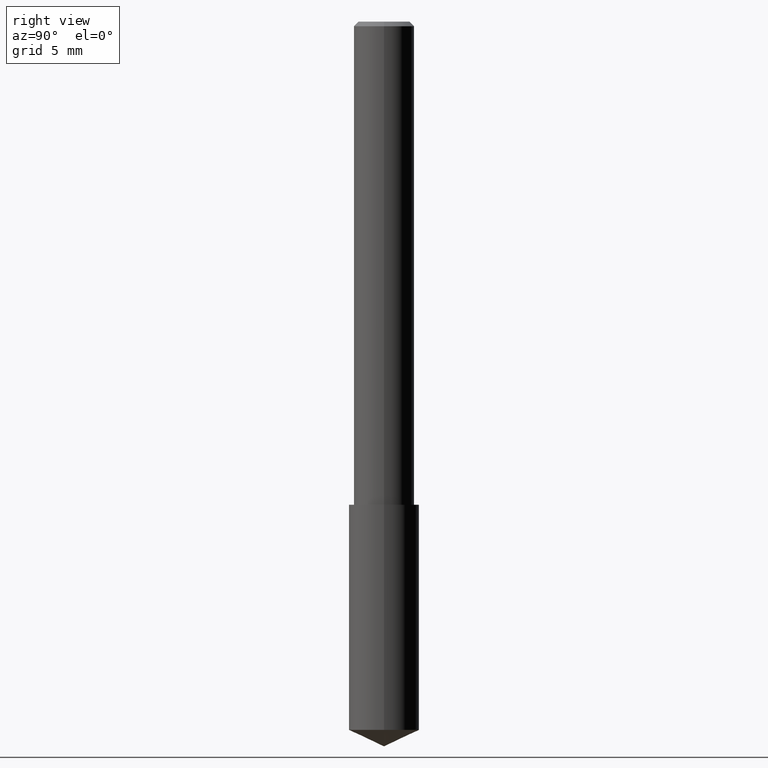
[diagram: clean part render]
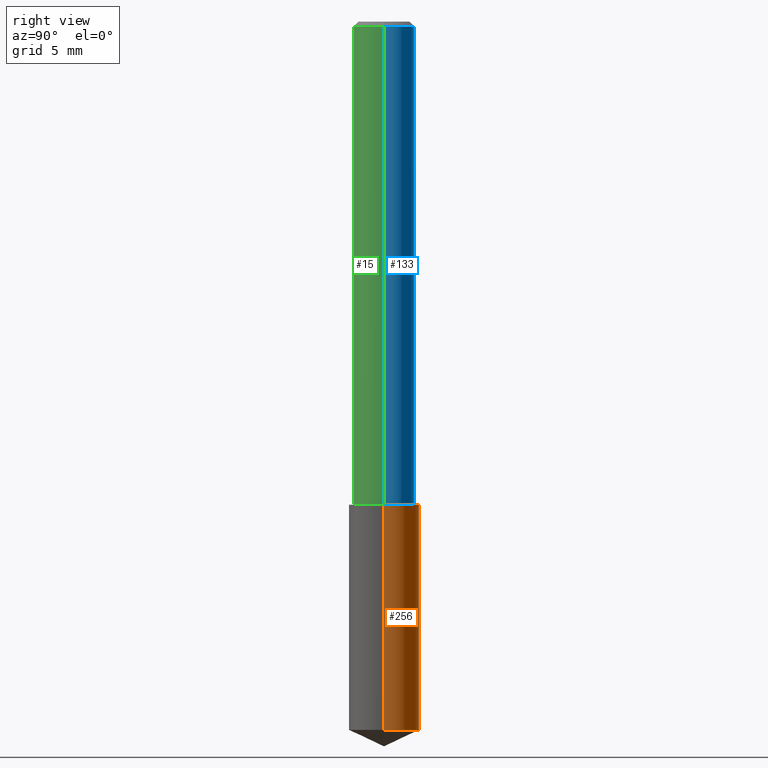
[diagram: same view with three faces highlighted in distinct colors, each labeled with its STEP entity id]
A machine part, right view with three faces highlighted in distinct colors.
Their STEP definitions:

[orange] entity #256 — the highlighted cylindrical surface (edge-blend (fillet) strip) has radius 1.8504 mm, axis along (-0, 0, 1).
#10 = ORIENTED_EDGE ( 'NONE', *, *, #85, .T. ) ;
#11 = EDGE_CURVE ( 'NONE', #93, #97, #141, .T. ) ;
#16 = ORIENTED_EDGE ( 'NONE', *, *, #74, .F. ) ;
#21 = VERTEX_POINT ( 'NONE', #154 ) ;
#25 = AXIS2_PLACEMENT_3D ( 'NONE', #312, #37, #38 ) ;
#27 = DIRECTION ( 'NONE',  ( 1.000000000000000000, -6.982962677686265922E-15, 0.000000000000000000 ) ) ;
#37 = DIRECTION ( 'NONE',  ( -2.445468806185136597E-29, 3.491481338843145583E-15, 1.000000000000000000 ) ) ;
#38 = DIRECTION ( 'NONE',  ( 1.000000000000000000, -6.982962677686265133E-15, 0.000000000000000000 ) ) ;
#46 = VECTOR ( 'NONE', #50, 39.37007874015748143 ) ;
#50 = DIRECTION ( 'NONE',  ( -2.445468806185136877E-29, 3.491481338843145188E-15, 1.000000000000000000 ) ) ;
#74 = EDGE_CURVE ( 'NONE', #97, #21, #299, .T. ) ;
#85 = EDGE_CURVE ( 'NONE', #93, #125, #169, .T. ) ;
#91 = AXIS2_PLACEMENT_3D ( 'NONE', #160, #132, #27 ) ;
#93 = VERTEX_POINT ( 'NONE', #95 ) ;
#95 = CARTESIAN_POINT ( 'NONE',  ( 0.07285000000000002585, -5.627323427484784326E-15, -1.466029487103408746 ) ) ;
#97 = VERTEX_POINT ( 'NONE', #328 ) ;
#115 = AXIS2_PLACEMENT_3D ( 'NONE', #214, #255, #282 ) ;
#125 = VERTEX_POINT ( 'NONE', #305 ) ;
#132 = DIRECTION ( 'NONE',  ( -2.445468806185136597E-29, 3.491481338843145583E-15, 1.000000000000000000 ) ) ;
#141 = LINE ( 'NONE', #143, #197 ) ;
#143 = CARTESIAN_POINT ( 'NONE',  ( 0.07284999999999999809, -4.000190169912591050E-15, -1.000000000000000222 ) ) ;
#147 = CARTESIAN_POINT ( 'NONE',  ( -0.07284999999999999809, -2.973850955841913597E-15, -1.000000000000000222 ) ) ;
#154 = CARTESIAN_POINT ( 'NONE',  ( -0.07284999999999999809, -3.787417584628009446E-15, -1.000000000000000222 ) ) ;
#160 = CARTESIAN_POINT ( 'NONE',  ( 2.445468806185136877E-29, -3.491481338843145977E-15, -1.000000000000000222 ) ) ;
#162 = CYLINDRICAL_SURFACE ( 'NONE', #115, 0.07284999999999999809 ) ;
#169 = CIRCLE ( 'NONE', #25, 0.07285000000000001197 ) ;
#197 = VECTOR ( 'NONE', #261, 39.37007874015748143 ) ;
#214 = CARTESIAN_POINT ( 'NONE',  ( 2.445468806185137438E-29, -3.491481338843146371E-15, -1.000000000000000222 ) ) ;
#234 = FACE_OUTER_BOUND ( 'NONE', #254, .T. ) ;
#242 = ORIENTED_EDGE ( 'NONE', *, *, #11, .F. ) ;
#251 = LINE ( 'NONE', #147, #46 ) ;
#254 = EDGE_LOOP ( 'NONE', ( #10, #274, #16, #242 ) ) ;
#255 = DIRECTION ( 'NONE',  ( -2.445468806185136597E-29, 3.491481338843145583E-15, 1.000000000000000000 ) ) ;
#256 = ADVANCED_FACE ( 'NONE', ( #234 ), #162, .T. ) ;
#261 = DIRECTION ( 'NONE',  ( -2.445468806185136877E-29, 3.491481338843145188E-15, 1.000000000000000000 ) ) ;
#274 = ORIENTED_EDGE ( 'NONE', *, *, #335, .T. ) ;
#282 = DIRECTION ( 'NONE',  ( 1.000000000000000000, -6.982962677686265922E-15, 0.000000000000000000 ) ) ;
#299 = CIRCLE ( 'NONE', #91, 0.07284999999999999809 ) ;
#305 = CARTESIAN_POINT ( 'NONE',  ( -0.07285000000000002585, -4.600984213414106479E-15, -1.466029487103408746 ) ) ;
#312 = CARTESIAN_POINT ( 'NONE',  ( 3.585129379658981357E-29, -5.118614596415340043E-15, -1.466029487103408746 ) ) ;
#328 = CARTESIAN_POINT ( 'NONE',  ( 0.07284999999999999809, -4.000190169912590261E-15, -1.000000000000000222 ) ) ;
#335 = EDGE_CURVE ( 'NONE', #125, #21, #251, .T. ) ;

[blue] entity #133 — the highlighted cylindrical surface (edge-blend (fillet) strip) has radius 1.5875 mm, axis along (-0, 0, 1).
#7 = VECTOR ( 'NONE', #336, 39.37007874015748143 ) ;
#28 = DIRECTION ( 'NONE',  ( -2.445468806185136597E-29, 3.491481338843145583E-15, 1.000000000000000000 ) ) ;
#29 = CARTESIAN_POINT ( 'NONE',  ( 0.06250000000000000000, -4.691678049070464390E-16, -0.009375000000000063838 ) ) ;
#33 = EDGE_CURVE ( 'NONE', #108, #104, #185, .T. ) ;
#35 = VECTOR ( 'NONE', #128, 39.37007874015748143 ) ;
#41 = EDGE_LOOP ( 'NONE', ( #69, #243, #168, #173 ) ) ;
#44 = CARTESIAN_POINT ( 'NONE',  ( 0.06250000000000006939, -4.364351673553921624E-16, 3.047610484872463374E-30 ) ) ;
#54 = CARTESIAN_POINT ( 'NONE',  ( 0.06250000000000012490, -3.927916506198539224E-15, -1.000000000000000222 ) ) ;
#57 = CARTESIAN_POINT ( 'NONE',  ( 2.445468806185137438E-29, -3.491481338843146371E-15, -1.000000000000000222 ) ) ;
#69 = ORIENTED_EDGE ( 'NONE', *, *, #303, .T. ) ;
#70 = CYLINDRICAL_SURFACE ( 'NONE', #139, 0.06250000000000006939 ) ;
#75 = DIRECTION ( 'NONE',  ( -2.445468806185136597E-29, 3.491481338843145583E-15, 1.000000000000000000 ) ) ;
#80 = CARTESIAN_POINT ( 'NONE',  ( -0.06250000000000006939, 4.440892098500631092E-16, -3.074334431409319267E-30 ) ) ;
#104 = VERTEX_POINT ( 'NONE', #241 ) ;
#108 = VERTEX_POINT ( 'NONE', #119 ) ;
#119 = CARTESIAN_POINT ( 'NONE',  ( -0.06250000000000012490, -1.318017778347335489E-15, -1.000000000000000222 ) ) ;
#128 = DIRECTION ( 'NONE',  ( -2.445468806185136877E-29, 3.491481338843145188E-15, 1.000000000000000000 ) ) ;
#133 = ADVANCED_FACE ( 'NONE', ( #202 ), #70, .T. ) ;
#138 = DIRECTION ( 'NONE',  ( 1.000000000000000000, -6.982962677686264344E-15, 0.000000000000000000 ) ) ;
#139 = AXIS2_PLACEMENT_3D ( 'NONE', #171, #75, #181 ) ;
#151 = CARTESIAN_POINT ( 'NONE',  ( 2.292627005798581499E-31, -3.273263755165471417E-17, -0.009375000000000063838 ) ) ;
#168 = ORIENTED_EDGE ( 'NONE', *, *, #225, .F. ) ;
#171 = CARTESIAN_POINT ( 'NONE',  ( 0.000000000000000000, 0.000000000000000000, 0.000000000000000000 ) ) ;
#173 = ORIENTED_EDGE ( 'NONE', *, *, #316, .F. ) ;
#181 = DIRECTION ( 'NONE',  ( 1.000000000000000000, -6.982962677686266711E-15, 4.876176775795935793E-29 ) ) ;
#185 = LINE ( 'NONE', #80, #7 ) ;
#198 = AXIS2_PLACEMENT_3D ( 'NONE', #151, #28, #315 ) ;
#202 = FACE_OUTER_BOUND ( 'NONE', #41, .T. ) ;
#216 = AXIS2_PLACEMENT_3D ( 'NONE', #57, #258, #138 ) ;
#225 = EDGE_CURVE ( 'NONE', #272, #104, #286, .T. ) ;
#227 = VERTEX_POINT ( 'NONE', #54 ) ;
#241 = CARTESIAN_POINT ( 'NONE',  ( -0.06250000000000000000, -1.318017778347336672E-15, -0.009375000000000063838 ) ) ;
#243 = ORIENTED_EDGE ( 'NONE', *, *, #33, .T. ) ;
#258 = DIRECTION ( 'NONE',  ( -2.445468806185136597E-29, 3.491481338843145583E-15, 1.000000000000000000 ) ) ;
#272 = VERTEX_POINT ( 'NONE', #29 ) ;
#286 = CIRCLE ( 'NONE', #198, 0.06250000000000000000 ) ;
#302 = CIRCLE ( 'NONE', #216, 0.06250000000000012490 ) ;
#303 = EDGE_CURVE ( 'NONE', #227, #108, #302, .T. ) ;
#307 = LINE ( 'NONE', #44, #35 ) ;
#315 = DIRECTION ( 'NONE',  ( 1.000000000000000000, -6.982962677686266711E-15, 0.000000000000000000 ) ) ;
#316 = EDGE_CURVE ( 'NONE', #227, #272, #307, .T. ) ;
#336 = DIRECTION ( 'NONE',  ( -2.445468806185136877E-29, 3.491481338843145188E-15, 1.000000000000000000 ) ) ;

[green] entity #15 — the highlighted cylindrical surface (edge-blend (fillet) strip) has radius 1.5875 mm, axis along (-0, 0, 1).
#7 = VECTOR ( 'NONE', #336, 39.37007874015748143 ) ;
#9 = EDGE_CURVE ( 'NONE', #104, #272, #112, .T. ) ;
#15 = ADVANCED_FACE ( 'NONE', ( #215 ), #86, .T. ) ;
#29 = CARTESIAN_POINT ( 'NONE',  ( 0.06250000000000000000, -4.691678049070464390E-16, -0.009375000000000063838 ) ) ;
#31 = CARTESIAN_POINT ( 'NONE',  ( 2.292627005798581499E-31, -3.273263755165471417E-17, -0.009375000000000063838 ) ) ;
#33 = EDGE_CURVE ( 'NONE', #108, #104, #185, .T. ) ;
#34 = AXIS2_PLACEMENT_3D ( 'NONE', #31, #60, #63 ) ;
#35 = VECTOR ( 'NONE', #128, 39.37007874015748143 ) ;
#36 = ORIENTED_EDGE ( 'NONE', *, *, #316, .T. ) ;
#44 = CARTESIAN_POINT ( 'NONE',  ( 0.06250000000000006939, -4.364351673553921624E-16, 3.047610484872463374E-30 ) ) ;
#45 = AXIS2_PLACEMENT_3D ( 'NONE', #259, #87, #83 ) ;
#54 = CARTESIAN_POINT ( 'NONE',  ( 0.06250000000000012490, -3.927916506198539224E-15, -1.000000000000000222 ) ) ;
#60 = DIRECTION ( 'NONE',  ( -2.445468806185136597E-29, 3.491481338843145583E-15, 1.000000000000000000 ) ) ;
#63 = DIRECTION ( 'NONE',  ( 1.000000000000000000, -6.982962677686266711E-15, 0.000000000000000000 ) ) ;
#67 = EDGE_CURVE ( 'NONE', #108, #227, #268, .T. ) ;
#80 = CARTESIAN_POINT ( 'NONE',  ( -0.06250000000000006939, 4.440892098500631092E-16, -3.074334431409319267E-30 ) ) ;
#83 = DIRECTION ( 'NONE',  ( 1.000000000000000000, -6.982962677686266711E-15, 4.876176775795935793E-29 ) ) ;
#86 = CYLINDRICAL_SURFACE ( 'NONE', #45, 0.06250000000000006939 ) ;
#87 = DIRECTION ( 'NONE',  ( -2.445468806185136597E-29, 3.491481338843145583E-15, 1.000000000000000000 ) ) ;
#101 = ORIENTED_EDGE ( 'NONE', *, *, #9, .F. ) ;
#104 = VERTEX_POINT ( 'NONE', #241 ) ;
#108 = VERTEX_POINT ( 'NONE', #119 ) ;
#112 = CIRCLE ( 'NONE', #34, 0.06250000000000000000 ) ;
#119 = CARTESIAN_POINT ( 'NONE',  ( -0.06250000000000012490, -1.318017778347335489E-15, -1.000000000000000222 ) ) ;
#120 = ORIENTED_EDGE ( 'NONE', *, *, #33, .F. ) ;
#128 = DIRECTION ( 'NONE',  ( -2.445468806185136877E-29, 3.491481338843145188E-15, 1.000000000000000000 ) ) ;
#129 = AXIS2_PLACEMENT_3D ( 'NONE', #164, #183, #285 ) ;
#164 = CARTESIAN_POINT ( 'NONE',  ( 2.445468806185137438E-29, -3.491481338843146371E-15, -1.000000000000000222 ) ) ;
#183 = DIRECTION ( 'NONE',  ( -2.445468806185136597E-29, 3.491481338843145583E-15, 1.000000000000000000 ) ) ;
#185 = LINE ( 'NONE', #80, #7 ) ;
#215 = FACE_OUTER_BOUND ( 'NONE', #284, .T. ) ;
#227 = VERTEX_POINT ( 'NONE', #54 ) ;
#241 = CARTESIAN_POINT ( 'NONE',  ( -0.06250000000000000000, -1.318017778347336672E-15, -0.009375000000000063838 ) ) ;
#259 = CARTESIAN_POINT ( 'NONE',  ( 0.000000000000000000, 0.000000000000000000, 0.000000000000000000 ) ) ;
#268 = CIRCLE ( 'NONE', #129, 0.06250000000000012490 ) ;
#272 = VERTEX_POINT ( 'NONE', #29 ) ;
#284 = EDGE_LOOP ( 'NONE', ( #120, #324, #36, #101 ) ) ;
#285 = DIRECTION ( 'NONE',  ( 1.000000000000000000, -6.982962677686264344E-15, 0.000000000000000000 ) ) ;
#307 = LINE ( 'NONE', #44, #35 ) ;
#316 = EDGE_CURVE ( 'NONE', #227, #272, #307, .T. ) ;
#324 = ORIENTED_EDGE ( 'NONE', *, *, #67, .T. ) ;
#336 = DIRECTION ( 'NONE',  ( -2.445468806185136877E-29, 3.491481338843145188E-15, 1.000000000000000000 ) ) ;